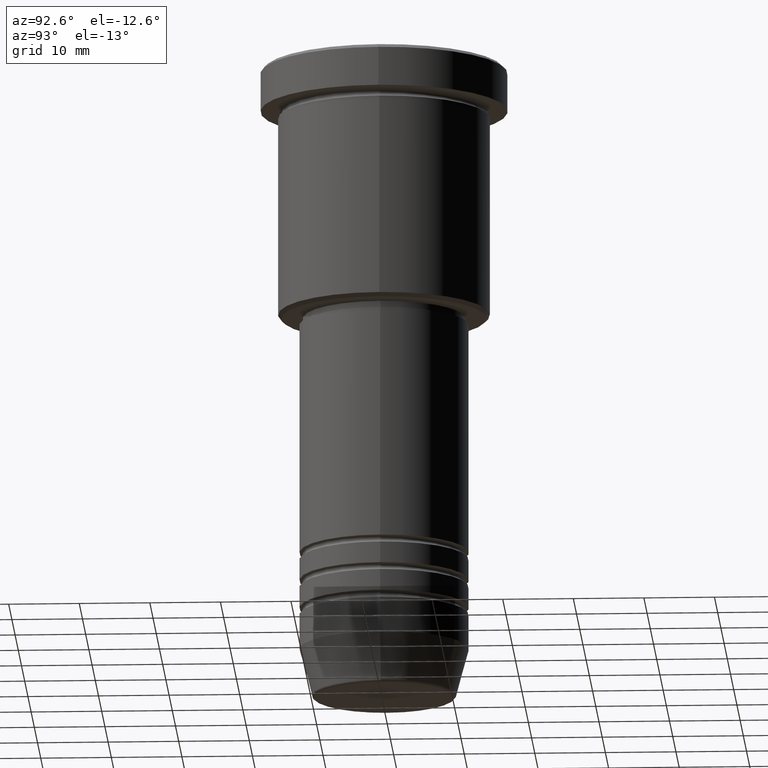
[diagram: clean part render]
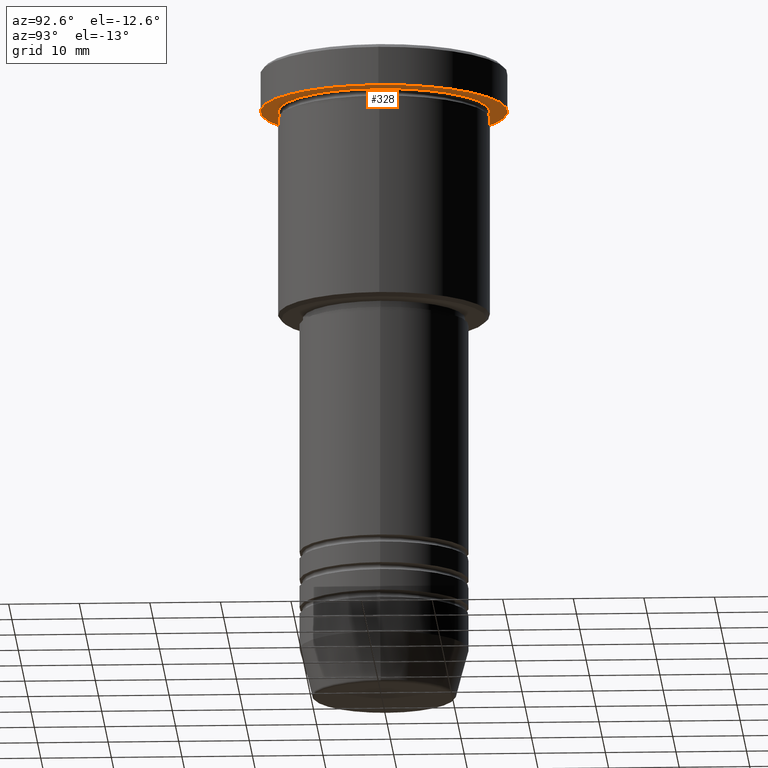
[diagram: same view with one face highlighted and labeled with its STEP entity id]
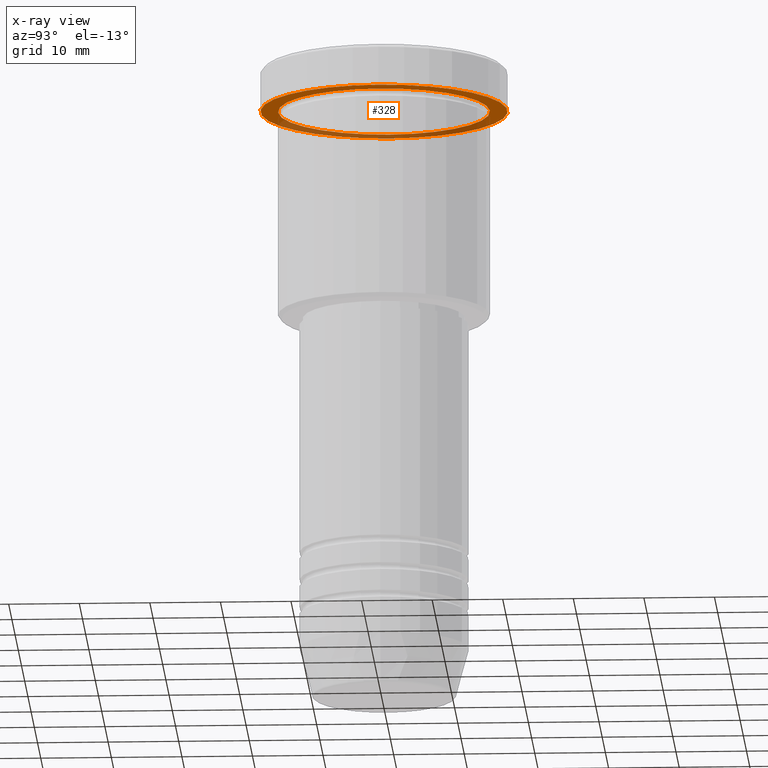
[diagram: x-ray of the same camera — body ghosted, the highlighted face saturated]
A machine part, auxiliary view. The second image highlights one B-rep face of the part: STEP entity #328.
The next image is the same camera in x-ray: the body ghosted, the highlighted face saturated — about 36% of this face is hidden behind the body in this view.
In plain terms, the highlighted planar face has unit normal (0, 0, -1).
Its self-contained STEP definition (entity closure, byte-faithful):
#1 = CIRCLE ( 'NONE', #573, 15.00000000000000000 ) ;
#2 = EDGE_CURVE ( 'NONE', #318, #1045, #1, .T. ) ;
#29 = DIRECTION ( 'NONE',  ( -1.000000000000000000, 0.000000000000000000, 0.000000000000000000 ) ) ;
#48 = CARTESIAN_POINT ( 'NONE',  ( 0.000000000000000000, 0.000000000000000000, -5.999999999999995559 ) ) ;
#66 = CARTESIAN_POINT ( 'NONE',  ( 0.000000000000000000, 0.000000000000000000, -5.999999999999995559 ) ) ;
#91 = ORIENTED_EDGE ( 'NONE', *, *, #344, .F. ) ;
#142 = DIRECTION ( 'NONE',  ( 0.000000000000000000, 0.000000000000000000, -1.000000000000000000 ) ) ;
#318 = VERTEX_POINT ( 'NONE', #512 ) ;
#328 = ADVANCED_FACE ( 'NONE', ( #617, #1134 ), #784, .T. ) ;
#334 = DIRECTION ( 'NONE',  ( 1.000000000000000000, 0.000000000000000000, 0.000000000000000000 ) ) ;
#339 = DIRECTION ( 'NONE',  ( -1.000000000000000000, 0.000000000000000000, -0.000000000000000000 ) ) ;
#344 = EDGE_CURVE ( 'NONE', #1124, #977, #534, .T. ) ;
#349 = EDGE_CURVE ( 'NONE', #977, #1124, #440, .T. ) ;
#432 = DIRECTION ( 'NONE',  ( -0.000000000000000000, -0.000000000000000000, 1.000000000000000000 ) ) ;
#440 = CIRCLE ( 'NONE', #1108, 17.50000000000000000 ) ;
#458 = AXIS2_PLACEMENT_3D ( 'NONE', #66, #775, #334 ) ;
#502 = CARTESIAN_POINT ( 'NONE',  ( 0.000000000000000000, 17.50000000000000000, -5.999999999999995559 ) ) ;
#512 = CARTESIAN_POINT ( 'NONE',  ( 15.00000000000000000, 1.836970198721029589E-15, -5.999999999999994671 ) ) ;
#534 = CIRCLE ( 'NONE', #458, 17.50000000000000000 ) ;
#573 = AXIS2_PLACEMENT_3D ( 'NONE', #756, #940, #29 ) ;
#585 = DIRECTION ( 'NONE',  ( -1.000000000000000000, 0.000000000000000000, 0.000000000000000000 ) ) ;
#617 = FACE_BOUND ( 'NONE', #744, .T. ) ;
#631 = AXIS2_PLACEMENT_3D ( 'NONE', #502, #142, #339 ) ;
#643 = CARTESIAN_POINT ( 'NONE',  ( 17.50000000000000000, 0.000000000000000000, -5.999999999999995559 ) ) ;
#663 = EDGE_LOOP ( 'NONE', ( #91, #885 ) ) ;
#678 = ORIENTED_EDGE ( 'NONE', *, *, #2, .T. ) ;
#739 = EDGE_CURVE ( 'NONE', #1045, #318, #890, .T. ) ;
#744 = EDGE_LOOP ( 'NONE', ( #985, #678 ) ) ;
#756 = CARTESIAN_POINT ( 'NONE',  ( 0.000000000000000000, 0.000000000000000000, -5.999999999999995559 ) ) ;
#775 = DIRECTION ( 'NONE',  ( -0.000000000000000000, -0.000000000000000000, 1.000000000000000000 ) ) ;
#784 = PLANE ( 'NONE',  #631 ) ;
#880 = CARTESIAN_POINT ( 'NONE',  ( -15.00000000000000000, 0.000000000000000000, -5.999999999999994671 ) ) ;
#882 = DIRECTION ( 'NONE',  ( 1.000000000000000000, 0.000000000000000000, 0.000000000000000000 ) ) ;
#885 = ORIENTED_EDGE ( 'NONE', *, *, #349, .F. ) ;
#890 = CIRCLE ( 'NONE', #1050, 15.00000000000000000 ) ;
#938 = DIRECTION ( 'NONE',  ( -0.000000000000000000, -0.000000000000000000, 1.000000000000000000 ) ) ;
#940 = DIRECTION ( 'NONE',  ( -0.000000000000000000, -0.000000000000000000, 1.000000000000000000 ) ) ;
#977 = VERTEX_POINT ( 'NONE', #1144 ) ;
#985 = ORIENTED_EDGE ( 'NONE', *, *, #739, .T. ) ;
#1045 = VERTEX_POINT ( 'NONE', #880 ) ;
#1050 = AXIS2_PLACEMENT_3D ( 'NONE', #1101, #938, #585 ) ;
#1101 = CARTESIAN_POINT ( 'NONE',  ( 0.000000000000000000, 0.000000000000000000, -5.999999999999995559 ) ) ;
#1108 = AXIS2_PLACEMENT_3D ( 'NONE', #48, #432, #882 ) ;
#1124 = VERTEX_POINT ( 'NONE', #643 ) ;
#1134 = FACE_OUTER_BOUND ( 'NONE', #663, .T. ) ;
#1144 = CARTESIAN_POINT ( 'NONE',  ( -17.50000000000000000, 2.143131898507868248E-15, -5.999999999999995559 ) ) ;